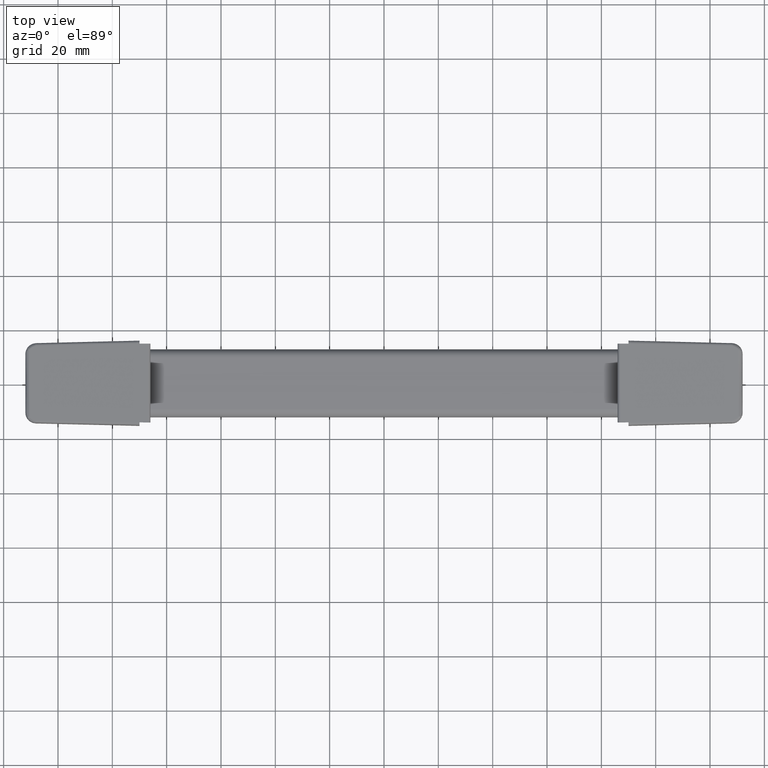
[diagram: clean part render]
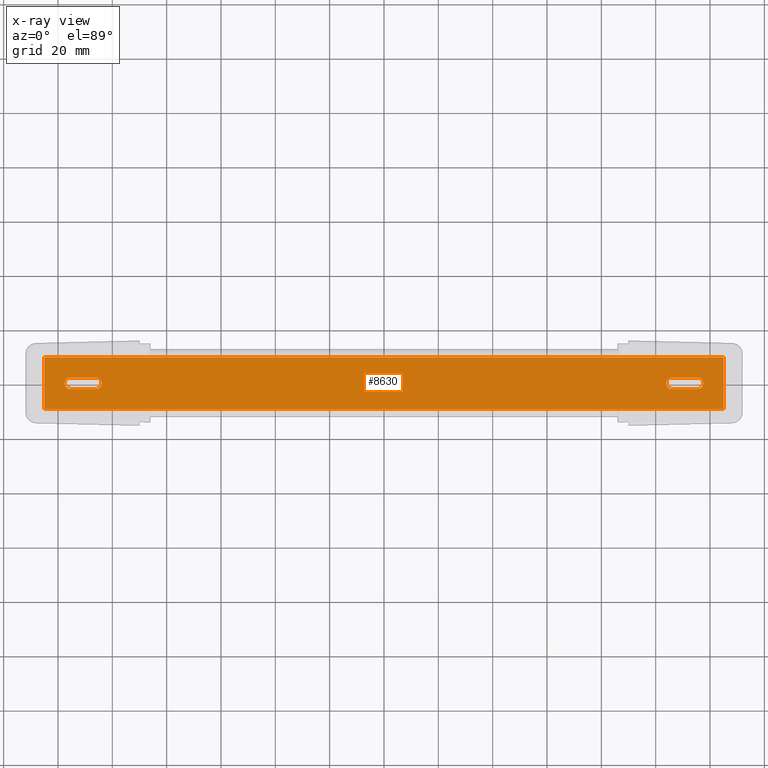
[diagram: x-ray — body ghosted, one internal face saturated and labeled with its STEP entity id]
A machine part, top view, then the same camera in x-ray: the body is ghosted and one INTERNAL B-rep face — a face not visible from any outside direction — is saturated and labeled: STEP entity #8630.
In plain terms, the highlighted face is a freeform B-spline surface patch.
Its self-contained STEP definition (entity closure, byte-faithful):
#7371=CARTESIAN_POINT('',(-115.400000000000010,-2.099999999999960,3.250000000000000));
#7372=VERTEX_POINT('',#7371);
#7373=CARTESIAN_POINT('',(-117.499999999989300,0.000006727861809,3.250000000000000));
#7374=VERTEX_POINT('',#7373);
#7375=CARTESIAN_POINT('',(-115.400000000000010,-2.099999999999960,3.250000000000000));
#7376=CARTESIAN_POINT('',(-115.761002557209200,-2.100857354955508,3.250000000000001));
#7377=CARTESIAN_POINT('',(-116.326960496145900,-1.950169625877564,3.250000000000002));
#7378=CARTESIAN_POINT('',(-116.943032260572490,-1.469127766373743,3.249999999999998));
#7379=CARTESIAN_POINT('',(-117.373200628046210,-0.858572787964777,3.250000000000001));
#7380=CARTESIAN_POINT('',(-117.500572632130100,-0.326553564657315,3.250000000000001));
#7381=CARTESIAN_POINT('',(-117.499999999989300,0.000006727861809,3.250000000000000));
#7382=B_SPLINE_CURVE_WITH_KNOTS('',3,(#7375,#7376,#7377,#7378,#7379,#7380,#7381),.UNSPECIFIED.,.F.,.U.,(4,1,1,1,4),(0.000000660187373,1.082414303572003,1.700823189839377,2.319432908616478,3.298758855307866),.UNSPECIFIED.);
#7383=EDGE_CURVE('',#7372,#7374,#7382,.T.);
#7385=CARTESIAN_POINT('',(-115.400000000000010,2.100000000000045,3.250000000000000));
#7386=VERTEX_POINT('',#7385);
#7387=CARTESIAN_POINT('',(-117.499999999989300,0.000006727861809,3.250000000000000));
#7388=CARTESIAN_POINT('',(-117.500053793766800,0.206159218955968,3.250000000000000));
#7389=CARTESIAN_POINT('',(-117.428757976611290,0.687283170919369,3.250000000000002));
#7390=CARTESIAN_POINT('',(-117.098665692646510,1.305108077508390,3.249999999999994));
#7391=CARTESIAN_POINT('',(-116.622244901680200,1.736476602792987,3.250000000000006));
#7392=CARTESIAN_POINT('',(-116.069897819294990,2.023075877350709,3.249999999999995));
#7393=CARTESIAN_POINT('',(-115.657751513780700,2.100238140567340,3.250000000000003));
#7394=CARTESIAN_POINT('',(-115.400000000000010,2.100000000000045,3.250000000000000));
#7395=B_SPLINE_CURVE_WITH_KNOTS('',3,(#7387,#7388,#7389,#7390,#7391,#7392,#7393,#7394),.UNSPECIFIED.,.F.,.U.,(4,1,1,1,1,4),(0.000000669340993,0.618499284565979,1.443252749195535,2.061674805201851,2.525607845601738,3.298751271250337),.UNSPECIFIED.);
#7396=EDGE_CURVE('',#7374,#7386,#7395,.T.);
#7443=CARTESIAN_POINT('',(-106.0,-2.099999999999845,3.250000000000000));
#7444=VERTEX_POINT('',#7443);
#7445=CARTESIAN_POINT('',(-106.0,-2.099999999999845,3.250000000000000));
#7446=CARTESIAN_POINT('',(-115.400000000000010,-2.099999999999960,3.250000000000000));
#7447=QUASI_UNIFORM_CURVE('',1,(#7445,#7446),.UNSPECIFIED.,.F.,.U.);
#7448=EDGE_CURVE('',#7444,#7372,#7447,.T.);
#7484=CARTESIAN_POINT('',(-106.0,2.099999999999900,3.250000000000000));
#7485=VERTEX_POINT('',#7484);
#7486=CARTESIAN_POINT('',(-103.900000000010910,-0.000006727861739,3.250000000000000));
#7487=VERTEX_POINT('',#7486);
#7488=CARTESIAN_POINT('',(-106.0,2.099999999999900,3.250000000000000));
#7489=CARTESIAN_POINT('',(-105.793858207144200,2.100022441297327,3.249999999999997));
#7490=CARTESIAN_POINT('',(-105.312683613142990,2.028830050815516,3.250000000000004));
#7491=CARTESIAN_POINT('',(-104.694954565642010,1.698592306469166,3.250000000000000));
#7492=CARTESIAN_POINT('',(-104.216778295933810,1.170813567834429,3.250000000000001));
#7493=CARTESIAN_POINT('',(-103.955965837774000,0.601321777797262,3.249999999999998));
#7494=CARTESIAN_POINT('',(-103.899954528681110,0.188974628914923,3.249999999999998));
#7495=CARTESIAN_POINT('',(-103.900000000010910,-0.000006727861739,3.250000000000000));
#7496=B_SPLINE_CURVE_WITH_KNOTS('',3,(#7488,#7489,#7490,#7491,#7492,#7493,#7494,#7495),.UNSPECIFIED.,.F.,.U.,(4,1,1,1,1,4),(0.000000660187966,0.618500699534173,1.443256068757343,2.061679562613096,2.731802184463999,3.298758855307647),.UNSPECIFIED.);
#7497=EDGE_CURVE('',#7485,#7487,#7496,.T.);
#7499=CARTESIAN_POINT('',(-103.900000000010910,-0.000006727861739,3.250000000000000));
#7500=CARTESIAN_POINT('',(-103.899975792591900,-0.171803472261163,3.250000000000000));
#7501=CARTESIAN_POINT('',(-103.950806914912600,-0.584159895463628,3.250000000000000));
#7502=CARTESIAN_POINT('',(-104.233172880867500,-1.221861500744236,3.250000000000000));
#7503=CARTESIAN_POINT('',(-104.765791322855190,-1.754396748441161,3.249999999999994));
#7504=CARTESIAN_POINT('',(-105.398682666940300,-2.044004752651481,3.250000000000012));
#7505=CARTESIAN_POINT('',(-105.811021553053390,-2.100046344688557,3.249999999999987));
#7506=CARTESIAN_POINT('',(-106.0,-2.099999999999845,3.250000000000000));
#7507=B_SPLINE_CURVE_WITH_KNOTS('',3,(#7499,#7500,#7501,#7502,#7503,#7504,#7505,#7506),.UNSPECIFIED.,.F.,.U.,(4,1,1,1,1,4),(0.000000669351694,0.515409226561865,1.237081952212646,2.061674805202644,2.731795907637514,3.298751271250123),.UNSPECIFIED.);
#7508=EDGE_CURVE('',#7487,#7444,#7507,.T.);
#7550=CARTESIAN_POINT('',(-115.400000000000010,2.100000000000045,3.250000000000000));
#7551=CARTESIAN_POINT('',(-106.0,2.099999999999900,3.250000000000000));
#7552=QUASI_UNIFORM_CURVE('',1,(#7550,#7551),.UNSPECIFIED.,.F.,.U.);
#7553=EDGE_CURVE('',#7386,#7485,#7552,.T.);
#7794=CARTESIAN_POINT('',(106.0,-2.099999999999845,3.250000000000000));
#7795=VERTEX_POINT('',#7794);
#7796=CARTESIAN_POINT('',(103.900000000010910,0.000006727861797,3.250000000000000));
#7797=VERTEX_POINT('',#7796);
#7798=CARTESIAN_POINT('',(106.0,-2.099999999999845,3.250000000000000));
#7799=CARTESIAN_POINT('',(105.793858490131400,-2.100022848843071,3.250000000000001));
#7800=CARTESIAN_POINT('',(105.312679154387300,-2.028833781099878,3.249999999999996));
#7801=CARTESIAN_POINT('',(104.694967815423000,-1.698583503195229,3.250000000000008));
#7802=CARTESIAN_POINT('',(104.216753247841400,-1.170827831309179,3.249999999999988));
#7803=CARTESIAN_POINT('',(103.955988409859700,-0.601314088867988,3.250000000000006));
#7804=CARTESIAN_POINT('',(103.899948292753190,-0.188975696341761,3.249999999999996));
#7805=CARTESIAN_POINT('',(103.900000000010910,0.000006727861797,3.250000000000000));
#7806=B_SPLINE_CURVE_WITH_KNOTS('',3,(#7798,#7799,#7800,#7801,#7802,#7803,#7804,#7805),.UNSPECIFIED.,.F.,.U.,(4,1,1,1,1,4),(0.000000660189903,0.618500699534861,1.443256068757748,2.061679562613187,2.731802184464102,3.298758855307701),.UNSPECIFIED.);
#7807=EDGE_CURVE('',#7795,#7797,#7806,.T.);
#7809=CARTESIAN_POINT('',(106.0,2.100000000000120,3.250000000000000));
#7810=VERTEX_POINT('',#7809);
#7811=CARTESIAN_POINT('',(103.900000000010910,0.000006727861797,3.250000000000000));
#7812=CARTESIAN_POINT('',(103.899973945364390,0.206150505442557,3.249999999999999));
#7813=CARTESIAN_POINT('',(103.971176426945700,0.687309390072388,3.250000000000008));
#7814=CARTESIAN_POINT('',(104.301381170896510,1.305083125172242,3.249999999999985));
#7815=CARTESIAN_POINT('',(104.777742339050500,1.736484157701696,3.250000000000016));
#7816=CARTESIAN_POINT('',(105.330100181206110,2.023075635745694,3.249999999999983));
#7817=CARTESIAN_POINT('',(105.742249687982910,2.100238387150640,3.250000000000007));
#7818=CARTESIAN_POINT('',(106.0,2.100000000000120,3.250000000000000));
#7819=B_SPLINE_CURVE_WITH_KNOTS('',3,(#7811,#7812,#7813,#7814,#7815,#7816,#7817,#7818),.UNSPECIFIED.,.F.,.U.,(4,1,1,1,1,4),(0.000000669354339,0.618499284575837,1.443252749201001,2.061674805204402,2.525607845602738,3.298751271250293),.UNSPECIFIED.);
#7820=EDGE_CURVE('',#7797,#7810,#7819,.T.);
#7869=CARTESIAN_POINT('',(115.400000000000010,2.100000000000045,3.250000000000000));
#7870=VERTEX_POINT('',#7869);
#7882=CARTESIAN_POINT('',(115.400000000000010,2.100000000000045,3.250000000000000));
#7883=CARTESIAN_POINT('',(106.0,2.100000000000120,3.250000000000000));
#7884=QUASI_UNIFORM_CURVE('',1,(#7882,#7883),.UNSPECIFIED.,.F.,.U.);
#7885=EDGE_CURVE('',#7870,#7810,#7884,.T.);
#7908=CARTESIAN_POINT('',(117.499999999989200,-0.000006727861723,3.250000000000000));
#7909=VERTEX_POINT('',#7908);
#7910=CARTESIAN_POINT('',(115.400000000000010,2.100000000000045,3.250000000000000));
#7911=CARTESIAN_POINT('',(115.726517341222300,2.100551474406713,3.250000000000004));
#7912=CARTESIAN_POINT('',(116.292949204708900,1.965088131143073,3.250000000000000));
#7913=CARTESIAN_POINT('',(116.923053088313000,1.497566444142590,3.250000000000000));
#7914=CARTESIAN_POINT('',(117.373200994099190,0.858590374594413,3.250000000000001));
#7915=CARTESIAN_POINT('',(117.500570904026700,0.326545142057553,3.250000000000001));
#7916=CARTESIAN_POINT('',(117.499999999989200,-0.000006727861723,3.250000000000000));
#7917=B_SPLINE_CURVE_WITH_KNOTS('',3,(#7910,#7911,#7912,#7913,#7914,#7915,#7916),.UNSPECIFIED.,.F.,.U.,(4,1,1,1,4),(0.000000660188271,0.979322859041541,1.700823189839852,2.319432908616818,3.298758855307853),.UNSPECIFIED.);
#7918=EDGE_CURVE('',#7870,#7909,#7917,.T.);
#7920=CARTESIAN_POINT('',(115.400000000000010,-2.099999999999955,3.250000000000000));
#7921=VERTEX_POINT('',#7920);
#7922=CARTESIAN_POINT('',(117.499999999989200,-0.000006727861723,3.250000000000000));
#7923=CARTESIAN_POINT('',(117.500553254152900,-0.326523981661409,3.250000000000004));
#7924=CARTESIAN_POINT('',(117.365090257348000,-0.892953122885191,3.249999999999988));
#7925=CARTESIAN_POINT('',(116.897572461505900,-1.523058385339595,3.250000000000016));
#7926=CARTESIAN_POINT('',(116.258594676252700,-1.973202447390917,3.249999999999974));
#7927=CARTESIAN_POINT('',(115.726551516342500,-2.100569400941095,3.250000000000014));
#7928=CARTESIAN_POINT('',(115.400000000000010,-2.099999999999955,3.250000000000000));
#7929=B_SPLINE_CURVE_WITH_KNOTS('',3,(#7922,#7923,#7924,#7925,#7926,#7927,#7928),.UNSPECIFIED.,.F.,.U.,(4,1,1,1,4),(0.000000669342596,0.979320611938595,1.700819270764320,2.319427581754849,3.298751271250325),.UNSPECIFIED.);
#7930=EDGE_CURVE('',#7909,#7921,#7929,.T.);
#7977=CARTESIAN_POINT('',(106.0,-2.099999999999845,3.250000000000000));
#7978=CARTESIAN_POINT('',(115.400000000000010,-2.099999999999955,3.250000000000000));
#7979=QUASI_UNIFORM_CURVE('',1,(#7977,#7978),.UNSPECIFIED.,.F.,.U.);
#7980=EDGE_CURVE('',#7795,#7921,#7979,.T.);
#8272=CARTESIAN_POINT('',(125.0,-9.500000000000000,3.250000000000000));
#8273=VERTEX_POINT('',#8272);
#8274=CARTESIAN_POINT('',(125.0,9.500000000000000,3.250000000000000));
#8275=VERTEX_POINT('',#8274);
#8276=CARTESIAN_POINT('',(125.0,-9.500000000000000,3.250000000000000));
#8277=CARTESIAN_POINT('',(125.0,9.500000000000000,3.250000000000000));
#8278=QUASI_UNIFORM_CURVE('',1,(#8276,#8277),.UNSPECIFIED.,.F.,.U.);
#8279=EDGE_CURVE('',#8273,#8275,#8278,.T.);
#8378=CARTESIAN_POINT('',(-125.0,-9.500000000000000,3.250000000000000));
#8379=VERTEX_POINT('',#8378);
#8380=CARTESIAN_POINT('',(-125.0,9.500000000000000,3.250000000000000));
#8381=VERTEX_POINT('',#8380);
#8382=CARTESIAN_POINT('',(-125.0,-9.500000000000000,3.250000000000000));
#8383=CARTESIAN_POINT('',(-125.0,9.500000000000000,3.250000000000000));
#8384=QUASI_UNIFORM_CURVE('',1,(#8382,#8383),.UNSPECIFIED.,.F.,.U.);
#8385=EDGE_CURVE('',#8379,#8381,#8384,.T.);
#8485=CARTESIAN_POINT('',(-125.0,9.500000000000000,3.250000000000000));
#8486=CARTESIAN_POINT('',(125.0,9.500000000000000,3.250000000000000));
#8487=QUASI_UNIFORM_CURVE('',1,(#8485,#8486),.UNSPECIFIED.,.F.,.U.);
#8488=EDGE_CURVE('',#8381,#8275,#8487,.T.);
#8511=CARTESIAN_POINT('',(-125.0,-9.500000000000000,3.250000000000000));
#8512=CARTESIAN_POINT('',(125.0,-9.500000000000000,3.250000000000000));
#8513=QUASI_UNIFORM_CURVE('',1,(#8511,#8512),.UNSPECIFIED.,.F.,.U.);
#8514=EDGE_CURVE('',#8379,#8273,#8513,.T.);
#8603=CARTESIAN_POINT('',(-137.487499515451500,-10.449049963174311,3.250000000000000));
#8604=CARTESIAN_POINT('',(-137.487499515451500,10.449050472794021,3.250000000000000));
#8605=CARTESIAN_POINT('',(137.487506220974010,-10.449049963174311,3.250000000000000));
#8606=CARTESIAN_POINT('',(137.487506220974010,10.449050472794021,3.250000000000000));
#8607=B_SPLINE_SURFACE_WITH_KNOTS('',1,1,((#8603,#8605),(#8604,#8606)),.UNSPECIFIED.,.F.,.F.,.U.,(2,2),(2,2),(0.0,20.898100435968342),(0.0,274.975005736425490),.UNSPECIFIED.);
#8608=ORIENTED_EDGE('',*,*,#8279,.F.);
#8609=ORIENTED_EDGE('',*,*,#8514,.F.);
#8610=ORIENTED_EDGE('',*,*,#8385,.T.);
#8611=ORIENTED_EDGE('',*,*,#8488,.T.);
#8612=EDGE_LOOP('',(#8608,#8609,#8610,#8611));
#8613=FACE_OUTER_BOUND('',#8612,.T.);
#8614=ORIENTED_EDGE('',*,*,#7553,.F.);
#8615=ORIENTED_EDGE('',*,*,#7396,.F.);
#8616=ORIENTED_EDGE('',*,*,#7383,.F.);
#8617=ORIENTED_EDGE('',*,*,#7448,.F.);
#8618=ORIENTED_EDGE('',*,*,#7508,.F.);
#8619=ORIENTED_EDGE('',*,*,#7497,.F.);
#8620=EDGE_LOOP('',(#8614,#8615,#8616,#8617,#8618,#8619));
#8621=FACE_BOUND('',#8620,.T.);
#8622=ORIENTED_EDGE('',*,*,#7980,.T.);
#8623=ORIENTED_EDGE('',*,*,#7930,.F.);
#8624=ORIENTED_EDGE('',*,*,#7918,.F.);
#8625=ORIENTED_EDGE('',*,*,#7885,.T.);
#8626=ORIENTED_EDGE('',*,*,#7820,.F.);
#8627=ORIENTED_EDGE('',*,*,#7807,.F.);
#8628=EDGE_LOOP('',(#8622,#8623,#8624,#8625,#8626,#8627));
#8629=FACE_BOUND('',#8628,.T.);
#8630=ADVANCED_FACE('',(#8613,#8621,#8629),#8607,.T.);